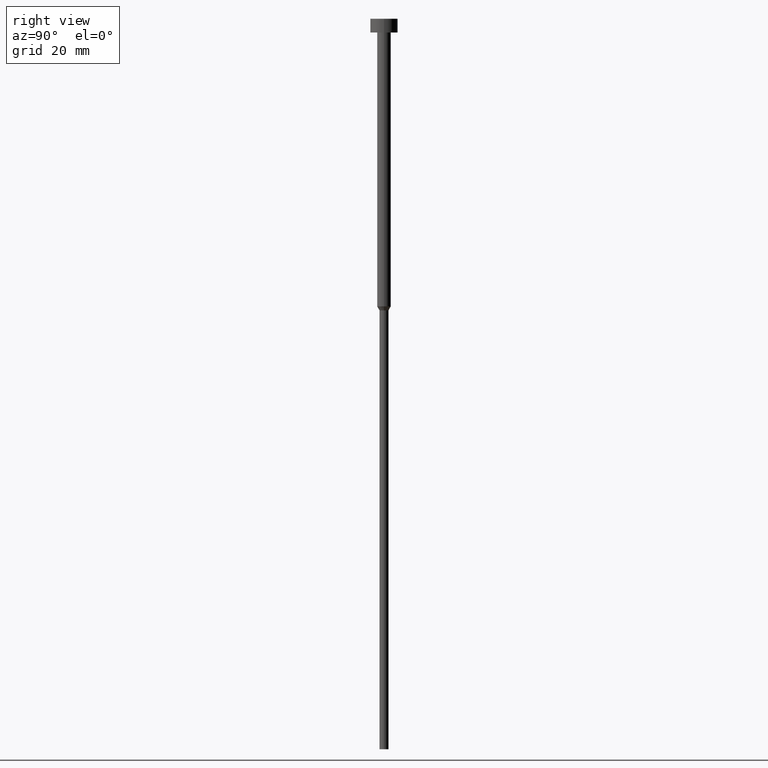
[diagram: clean part render]
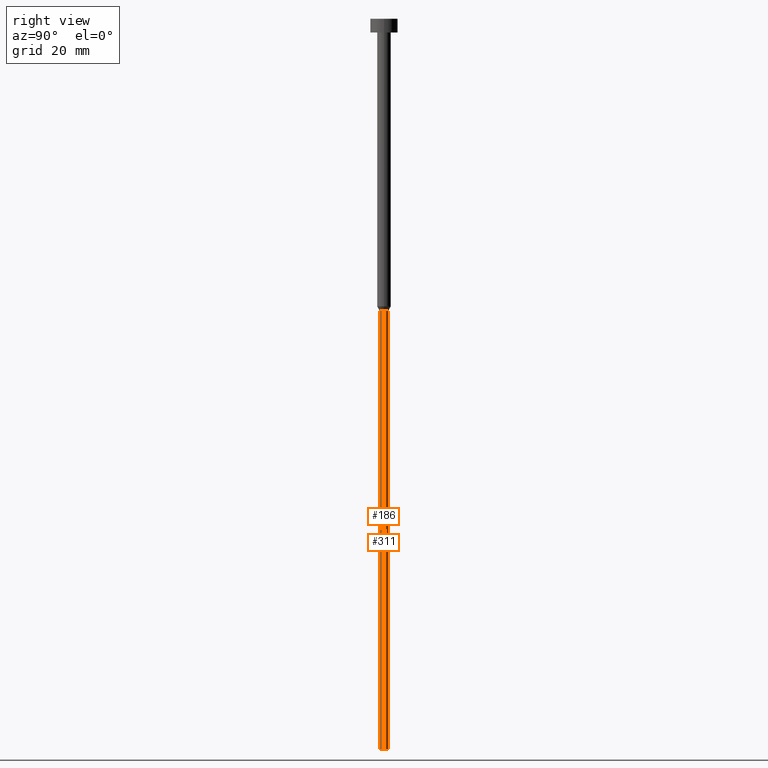
[diagram: same view with one multi-face feature highlighted, each face labeled with its STEP entity id]
A machine part, right view. The highlighted faces form ONE feature: a constant-radius fillet chain: 2 tangent blend faces with common blend radius 1 mm. The faces share edges in the B-rep.
Their STEP definitions:
[1] entity #186 (Cylinder):
#1 = VERTEX_POINT ( 'NONE', #85 ) ;
#10 = EDGE_CURVE ( 'NONE', #86, #168, #251, .T. ) ;
#20 = DIRECTION ( 'NONE',  ( 1.000000000000000000, 0.000000000000000000, 0.000000000000000000 ) ) ;
#31 = CARTESIAN_POINT ( 'NONE',  ( 1.000000000000000000, 0.000000000000000000, -63.86602540378444104 ) ) ;
#63 = CARTESIAN_POINT ( 'NONE',  ( 1.000000000000000000, 0.000000000000000000, -160.0000000000000000 ) ) ;
#68 = CARTESIAN_POINT ( 'NONE',  ( 0.000000000000000000, 0.000000000000000000, 0.000000000000000000 ) ) ;
#79 = DIRECTION ( 'NONE',  ( -0.000000000000000000, -0.000000000000000000, 1.000000000000000000 ) ) ;
#84 = CIRCLE ( 'NONE', #283, 1.000000000000000000 ) ;
#85 = CARTESIAN_POINT ( 'NONE',  ( -1.000000000000000000, 1.224646799147353207E-16, -160.0000000000000000 ) ) ;
#86 = VERTEX_POINT ( 'NONE', #63 ) ;
#97 = DIRECTION ( 'NONE',  ( -0.000000000000000000, -0.000000000000000000, 1.000000000000000000 ) ) ;
#114 = ORIENTED_EDGE ( 'NONE', *, *, #10, .T. ) ;
#127 = CARTESIAN_POINT ( 'NONE',  ( 0.000000000000000000, 0.000000000000000000, -63.86602540378444104 ) ) ;
#130 = AXIS2_PLACEMENT_3D ( 'NONE', #212, #293, #214 ) ;
#131 = CARTESIAN_POINT ( 'NONE',  ( -1.000000000000000000, 1.224646799147353207E-16, -63.86602540378444104 ) ) ;
#140 = ORIENTED_EDGE ( 'NONE', *, *, #223, .T. ) ;
#168 = VERTEX_POINT ( 'NONE', #31 ) ;
#179 = CARTESIAN_POINT ( 'NONE',  ( 1.000000000000000000, 0.000000000000000000, 0.000000000000000000 ) ) ;
#180 = DIRECTION ( 'NONE',  ( -0.000000000000000000, -0.000000000000000000, 1.000000000000000000 ) ) ;
#184 = VECTOR ( 'NONE', #79, 1000.000000000000000 ) ;
#185 = CARTESIAN_POINT ( 'NONE',  ( -1.000000000000000000, 1.224646799147353207E-16, 0.000000000000000000 ) ) ;
#186 = ADVANCED_FACE ( 'NONE', ( #338 ), #310, .T. ) ;
#212 = CARTESIAN_POINT ( 'NONE',  ( 0.000000000000000000, 0.000000000000000000, -160.0000000000000000 ) ) ;
#214 = DIRECTION ( 'NONE',  ( 1.000000000000000000, 0.000000000000000000, 0.000000000000000000 ) ) ;
#215 = ORIENTED_EDGE ( 'NONE', *, *, #267, .F. ) ;
#223 = EDGE_CURVE ( 'NONE', #1, #86, #321, .T. ) ;
#226 = VERTEX_POINT ( 'NONE', #131 ) ;
#227 = ORIENTED_EDGE ( 'NONE', *, *, #317, .F. ) ;
#236 = DIRECTION ( 'NONE',  ( 1.000000000000000000, 0.000000000000000000, 0.000000000000000000 ) ) ;
#239 = VECTOR ( 'NONE', #97, 1000.000000000000000 ) ;
#251 = LINE ( 'NONE', #179, #239 ) ;
#265 = DIRECTION ( 'NONE',  ( -0.000000000000000000, -0.000000000000000000, 1.000000000000000000 ) ) ;
#267 = EDGE_CURVE ( 'NONE', #1, #226, #315, .T. ) ;
#283 = AXIS2_PLACEMENT_3D ( 'NONE', #127, #265, #20 ) ;
#293 = DIRECTION ( 'NONE',  ( -0.000000000000000000, -0.000000000000000000, 1.000000000000000000 ) ) ;
#301 = EDGE_LOOP ( 'NONE', ( #215, #140, #114, #227 ) ) ;
#310 = CYLINDRICAL_SURFACE ( 'NONE', #319, 1.000000000000000000 ) ;
#315 = LINE ( 'NONE', #185, #184 ) ;
#317 = EDGE_CURVE ( 'NONE', #226, #168, #84, .T. ) ;
#319 = AXIS2_PLACEMENT_3D ( 'NONE', #68, #180, #236 ) ;
#321 = CIRCLE ( 'NONE', #130, 1.000000000000000000 ) ;
#338 = FACE_OUTER_BOUND ( 'NONE', #301, .T. ) ;
[2] entity #311 (Cylinder):
#1 = VERTEX_POINT ( 'NONE', #85 ) ;
#10 = EDGE_CURVE ( 'NONE', #86, #168, #251, .T. ) ;
#11 = DIRECTION ( 'NONE',  ( -0.000000000000000000, -0.000000000000000000, 1.000000000000000000 ) ) ;
#13 = DIRECTION ( 'NONE',  ( 1.000000000000000000, 0.000000000000000000, 0.000000000000000000 ) ) ;
#19 = EDGE_CURVE ( 'NONE', #86, #1, #148, .T. ) ;
#29 = ORIENTED_EDGE ( 'NONE', *, *, #10, .F. ) ;
#31 = CARTESIAN_POINT ( 'NONE',  ( 1.000000000000000000, 0.000000000000000000, -63.86602540378444104 ) ) ;
#55 = ORIENTED_EDGE ( 'NONE', *, *, #267, .T. ) ;
#63 = CARTESIAN_POINT ( 'NONE',  ( 1.000000000000000000, 0.000000000000000000, -160.0000000000000000 ) ) ;
#67 = CARTESIAN_POINT ( 'NONE',  ( 0.000000000000000000, 0.000000000000000000, -63.86602540378444104 ) ) ;
#71 = AXIS2_PLACEMENT_3D ( 'NONE', #149, #121, #307 ) ;
#78 = FACE_OUTER_BOUND ( 'NONE', #351, .T. ) ;
#79 = DIRECTION ( 'NONE',  ( -0.000000000000000000, -0.000000000000000000, 1.000000000000000000 ) ) ;
#85 = CARTESIAN_POINT ( 'NONE',  ( -1.000000000000000000, 1.224646799147353207E-16, -160.0000000000000000 ) ) ;
#86 = VERTEX_POINT ( 'NONE', #63 ) ;
#97 = DIRECTION ( 'NONE',  ( -0.000000000000000000, -0.000000000000000000, 1.000000000000000000 ) ) ;
#121 = DIRECTION ( 'NONE',  ( -0.000000000000000000, -0.000000000000000000, 1.000000000000000000 ) ) ;
#122 = EDGE_CURVE ( 'NONE', #168, #226, #291, .T. ) ;
#131 = CARTESIAN_POINT ( 'NONE',  ( -1.000000000000000000, 1.224646799147353207E-16, -63.86602540378444104 ) ) ;
#139 = ORIENTED_EDGE ( 'NONE', *, *, #19, .T. ) ;
#148 = CIRCLE ( 'NONE', #71, 1.000000000000000000 ) ;
#149 = CARTESIAN_POINT ( 'NONE',  ( 0.000000000000000000, 0.000000000000000000, -160.0000000000000000 ) ) ;
#159 = AXIS2_PLACEMENT_3D ( 'NONE', #67, #11, #287 ) ;
#168 = VERTEX_POINT ( 'NONE', #31 ) ;
#179 = CARTESIAN_POINT ( 'NONE',  ( 1.000000000000000000, 0.000000000000000000, 0.000000000000000000 ) ) ;
#184 = VECTOR ( 'NONE', #79, 1000.000000000000000 ) ;
#185 = CARTESIAN_POINT ( 'NONE',  ( -1.000000000000000000, 1.224646799147353207E-16, 0.000000000000000000 ) ) ;
#196 = ORIENTED_EDGE ( 'NONE', *, *, #122, .F. ) ;
#213 = AXIS2_PLACEMENT_3D ( 'NONE', #241, #346, #13 ) ;
#226 = VERTEX_POINT ( 'NONE', #131 ) ;
#239 = VECTOR ( 'NONE', #97, 1000.000000000000000 ) ;
#241 = CARTESIAN_POINT ( 'NONE',  ( 0.000000000000000000, 0.000000000000000000, 0.000000000000000000 ) ) ;
#251 = LINE ( 'NONE', #179, #239 ) ;
#266 = CYLINDRICAL_SURFACE ( 'NONE', #213, 1.000000000000000000 ) ;
#267 = EDGE_CURVE ( 'NONE', #1, #226, #315, .T. ) ;
#287 = DIRECTION ( 'NONE',  ( 1.000000000000000000, 0.000000000000000000, 0.000000000000000000 ) ) ;
#291 = CIRCLE ( 'NONE', #159, 1.000000000000000000 ) ;
#307 = DIRECTION ( 'NONE',  ( 1.000000000000000000, 0.000000000000000000, 0.000000000000000000 ) ) ;
#311 = ADVANCED_FACE ( 'NONE', ( #78 ), #266, .T. ) ;
#315 = LINE ( 'NONE', #185, #184 ) ;
#346 = DIRECTION ( 'NONE',  ( -0.000000000000000000, -0.000000000000000000, 1.000000000000000000 ) ) ;
#351 = EDGE_LOOP ( 'NONE', ( #139, #55, #196, #29 ) ) ;